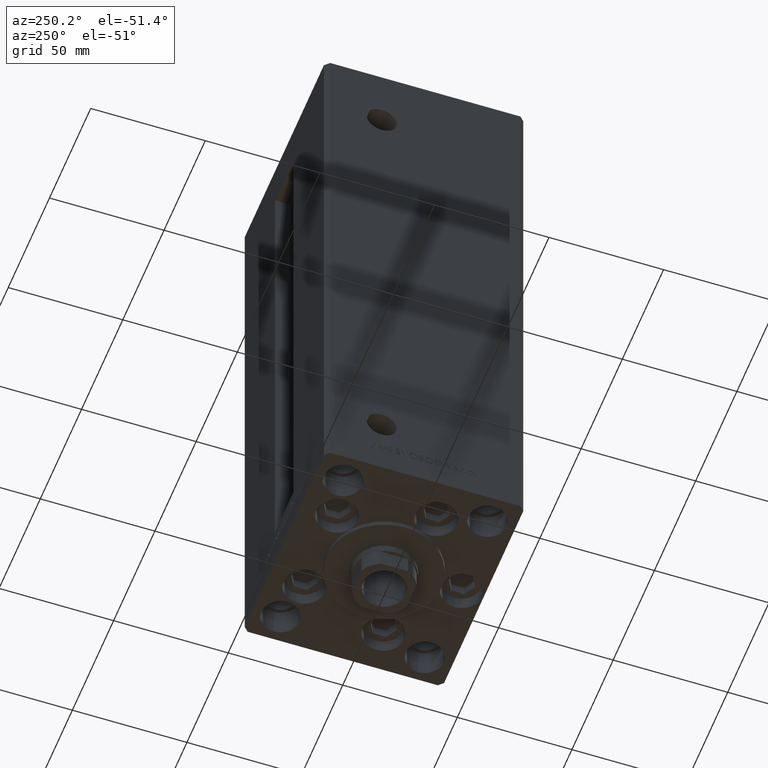
[diagram: clean part render]
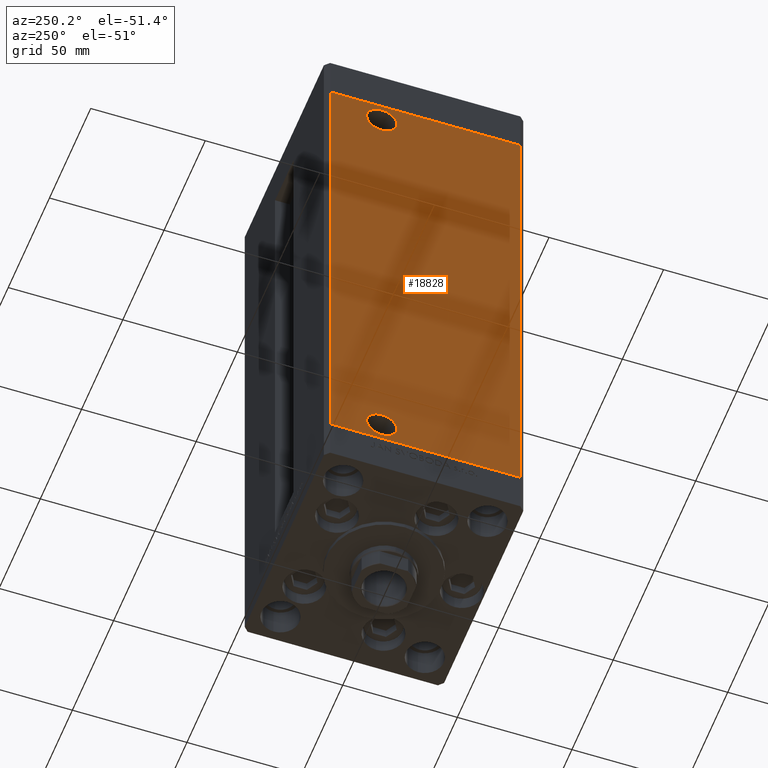
[diagram: same view with one face highlighted and labeled with its STEP entity id]
A machine part, auxiliary view. The second image highlights one B-rep face of the part: STEP entity #18828.
In plain terms, the highlighted planar face has unit normal (1, 0, 0).
Its self-contained STEP definition (entity closure, byte-faithful):
#141 = CARTESIAN_POINT ( 'NONE',  ( -50.00000000000001421, 41.49999999999999289, 0.000000000000000000 ) ) ;
#384 = CARTESIAN_POINT ( 'NONE',  ( -49.99999999999998579, -41.49999999999999289, 218.5000000000000000 ) ) ;
#1547 = DIRECTION ( 'NONE',  ( 3.344045254895050973E-16, -1.000000000000000000, 0.000000000000000000 ) ) ;
#1769 = EDGE_CURVE ( 'NONE', #5028, #28814, #47694, .T. ) ;
#2305 = ORIENTED_EDGE ( 'NONE', *, *, #28003, .F. ) ;
#2886 = ORIENTED_EDGE ( 'NONE', *, *, #44941, .F. ) ;
#3831 = LINE ( 'NONE', #21014, #5881 ) ;
#5028 = VERTEX_POINT ( 'NONE', #33644 ) ;
#5050 = VERTEX_POINT ( 'NONE', #47657 ) ;
#5797 = ORIENTED_EDGE ( 'NONE', *, *, #29955, .F. ) ;
#5870 = DIRECTION ( 'NONE',  ( -1.000000000000000000, -2.275047181608927644E-16, 0.000000000000000000 ) ) ;
#5881 = VECTOR ( 'NONE', #1547, 1000.000000000000000 ) ;
#6598 = CARTESIAN_POINT ( 'NONE',  ( -50.00000000000000711, 19.00000000000000000, 209.5000000000000000 ) ) ;
#7225 = DIRECTION ( 'NONE',  ( -0.000000000000000000, -0.000000000000000000, -1.000000000000000000 ) ) ;
#7565 = PLANE ( 'NONE',  #38458 ) ;
#7638 = DIRECTION ( 'NONE',  ( -1.000000000000000000, -2.275047181608927644E-16, 0.000000000000000000 ) ) ;
#7902 = VECTOR ( 'NONE', #32003, 1000.000000000000000 ) ;
#8059 = VERTEX_POINT ( 'NONE', #40710 ) ;
#8139 = ORIENTED_EDGE ( 'NONE', *, *, #30725, .F. ) ;
#8964 = ORIENTED_EDGE ( 'NONE', *, *, #1769, .F. ) ;
#9517 = EDGE_LOOP ( 'NONE', ( #19539, #30234, #2305, #10461 ) ) ;
#10461 = ORIENTED_EDGE ( 'NONE', *, *, #22000, .T. ) ;
#10620 = AXIS2_PLACEMENT_3D ( 'NONE', #6598, #22282, #45833 ) ;
#10982 = VECTOR ( 'NONE', #7225, 1000.000000000000000 ) ;
#11178 = CARTESIAN_POINT ( 'NONE',  ( -50.00000000000000711, 18.99999999999997158, 9.000000000000000000 ) ) ;
#11619 = CARTESIAN_POINT ( 'NONE',  ( -50.00000000000000711, 25.57999999999997698, 9.000000000000000000 ) ) ;
#12523 = DIRECTION ( 'NONE',  ( 0.000000000000000000, -1.000000000000000000, 0.000000000000000000 ) ) ;
#13005 = CARTESIAN_POINT ( 'NONE',  ( -50.00000000000001421, 41.49999999999999289, 218.5000000000000000 ) ) ;
#14739 = DIRECTION ( 'NONE',  ( 0.000000000000000000, -1.000000000000000000, 0.000000000000000000 ) ) ;
#15654 = DIRECTION ( 'NONE',  ( -3.344045254895050480E-16, 1.000000000000000000, 0.000000000000000000 ) ) ;
#18059 = CARTESIAN_POINT ( 'NONE',  ( -50.00000000000001421, 41.49999999999999289, 0.000000000000000000 ) ) ;
#18303 = CIRCLE ( 'NONE', #19891, 6.580000000000002736 ) ;
#18828 = ADVANCED_FACE ( 'NONE', ( #26807, #42505, #42255 ), #7565, .F. ) ;
#19270 = EDGE_CURVE ( 'NONE', #45688, #5050, #45717, .T. ) ;
#19539 = ORIENTED_EDGE ( 'NONE', *, *, #48183, .T. ) ;
#19891 = AXIS2_PLACEMENT_3D ( 'NONE', #24918, #47226, #12523 ) ;
#20718 = LINE ( 'NONE', #141, #49173 ) ;
#21014 = CARTESIAN_POINT ( 'NONE',  ( -50.00000000000001421, 41.49999999999999289, 218.5000000000000000 ) ) ;
#21297 = DIRECTION ( 'NONE',  ( 0.000000000000000000, -1.000000000000000000, 0.000000000000000000 ) ) ;
#22000 = EDGE_CURVE ( 'NONE', #29734, #49008, #47704, .T. ) ;
#22282 = DIRECTION ( 'NONE',  ( -1.000000000000000000, -2.275047181608927644E-16, 0.000000000000000000 ) ) ;
#22994 = CARTESIAN_POINT ( 'NONE',  ( -50.00000000000001421, 41.49999999999999289, 218.5000000000000000 ) ) ;
#24918 = CARTESIAN_POINT ( 'NONE',  ( -50.00000000000000711, 18.99999999999997158, 9.000000000000000000 ) ) ;
#26807 = FACE_BOUND ( 'NONE', #38769, .T. ) ;
#28003 = EDGE_CURVE ( 'NONE', #29734, #45688, #3831, .T. ) ;
#28814 = VERTEX_POINT ( 'NONE', #11619 ) ;
#29734 = VERTEX_POINT ( 'NONE', #34477 ) ;
#29955 = EDGE_CURVE ( 'NONE', #49240, #8059, #40563, .T. ) ;
#30234 = ORIENTED_EDGE ( 'NONE', *, *, #19270, .F. ) ;
#30725 = EDGE_CURVE ( 'NONE', #8059, #49240, #42208, .T. ) ;
#30985 = CARTESIAN_POINT ( 'NONE',  ( -49.99999999999998579, -41.49999999999999289, 218.5000000000000000 ) ) ;
#32003 = DIRECTION ( 'NONE',  ( -0.000000000000000000, -0.000000000000000000, -1.000000000000000000 ) ) ;
#33644 = CARTESIAN_POINT ( 'NONE',  ( -50.00000000000000711, 12.41999999999996973, 9.000000000000000000 ) ) ;
#33951 = AXIS2_PLACEMENT_3D ( 'NONE', #11178, #7638, #14739 ) ;
#34477 = CARTESIAN_POINT ( 'NONE',  ( -50.00000000000001421, 41.49999999999999289, 218.5000000000000000 ) ) ;
#35588 = DIRECTION ( 'NONE',  ( 3.344045254895050973E-16, -1.000000000000000000, 0.000000000000000000 ) ) ;
#38457 = DIRECTION ( 'NONE',  ( 1.000000000000000000, 3.344045254895050480E-16, -0.000000000000000000 ) ) ;
#38458 = AXIS2_PLACEMENT_3D ( 'NONE', #22994, #38457, #15654 ) ;
#38769 = EDGE_LOOP ( 'NONE', ( #8964, #2886 ) ) ;
#40550 = CARTESIAN_POINT ( 'NONE',  ( -50.00000000000000711, 19.00000000000000000, 209.5000000000000000 ) ) ;
#40563 = CIRCLE ( 'NONE', #10620, 6.580000000000016058 ) ;
#40710 = CARTESIAN_POINT ( 'NONE',  ( -50.00000000000000711, 12.41999999999998394, 209.5000000000000000 ) ) ;
#42208 = CIRCLE ( 'NONE', #47071, 6.580000000000016058 ) ;
#42255 = FACE_OUTER_BOUND ( 'NONE', #9517, .T. ) ;
#42505 = FACE_BOUND ( 'NONE', #45609, .T. ) ;
#44941 = EDGE_CURVE ( 'NONE', #28814, #5028, #18303, .T. ) ;
#45609 = EDGE_LOOP ( 'NONE', ( #8139, #5797 ) ) ;
#45612 = CARTESIAN_POINT ( 'NONE',  ( -50.00000000000000711, 25.58000000000001606, 209.5000000000000000 ) ) ;
#45688 = VERTEX_POINT ( 'NONE', #30985 ) ;
#45717 = LINE ( 'NONE', #384, #10982 ) ;
#45833 = DIRECTION ( 'NONE',  ( 0.000000000000000000, -1.000000000000000000, 0.000000000000000000 ) ) ;
#47071 = AXIS2_PLACEMENT_3D ( 'NONE', #40550, #5870, #21297 ) ;
#47226 = DIRECTION ( 'NONE',  ( -1.000000000000000000, -2.275047181608927644E-16, 0.000000000000000000 ) ) ;
#47657 = CARTESIAN_POINT ( 'NONE',  ( -49.99999999999998579, -41.49999999999999289, 0.000000000000000000 ) ) ;
#47694 = CIRCLE ( 'NONE', #33951, 6.580000000000002736 ) ;
#47704 = LINE ( 'NONE', #13005, #7902 ) ;
#48183 = EDGE_CURVE ( 'NONE', #49008, #5050, #20718, .T. ) ;
#49008 = VERTEX_POINT ( 'NONE', #18059 ) ;
#49173 = VECTOR ( 'NONE', #35588, 1000.000000000000000 ) ;
#49240 = VERTEX_POINT ( 'NONE', #45612 ) ;